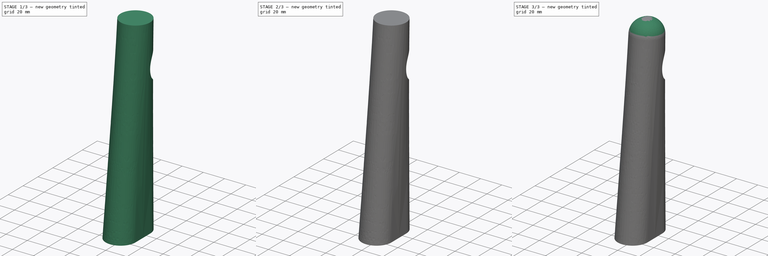
[diagram: build sequence overview — one tinted view per stage of 3, left to right]
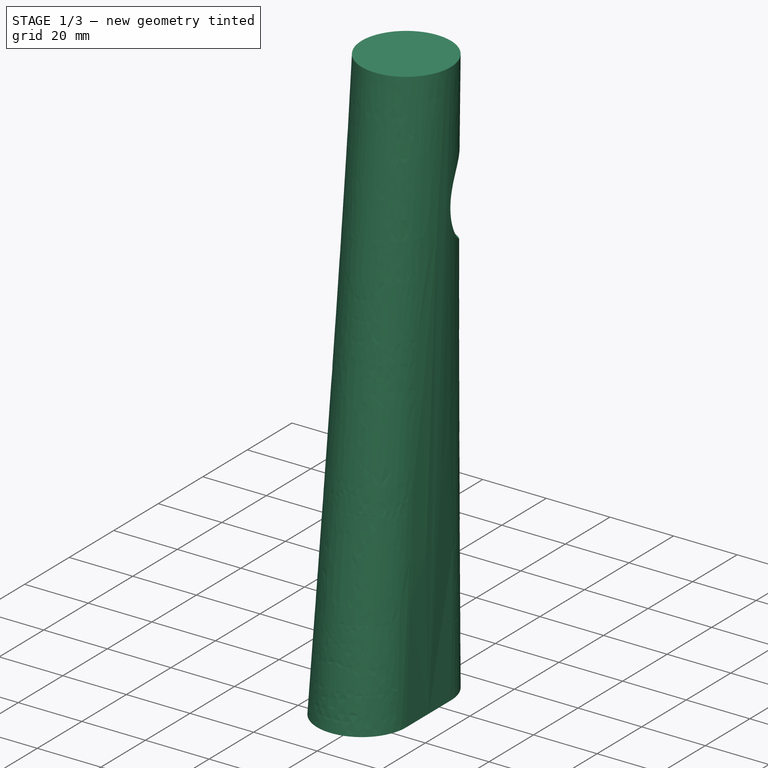
[diagram: stage 1 of 3 — iso view after this stage's code; geometry added in this stage tinted green]
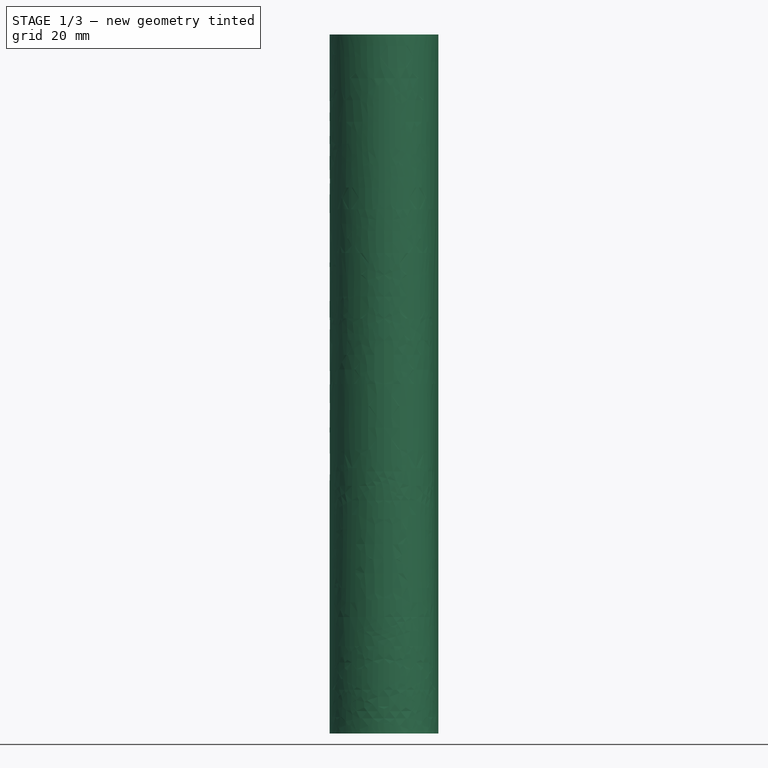
[diagram: stage 1 of 3 — front view after this stage's code; geometry added in this stage tinted green]
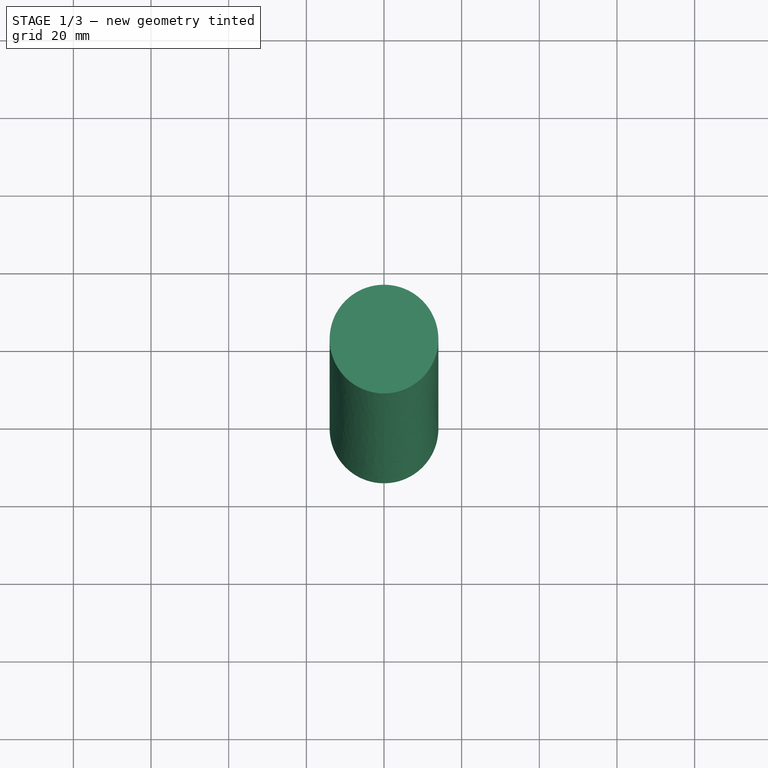
[diagram: stage 1 of 3 — top view after this stage's code; geometry added in this stage tinted green]
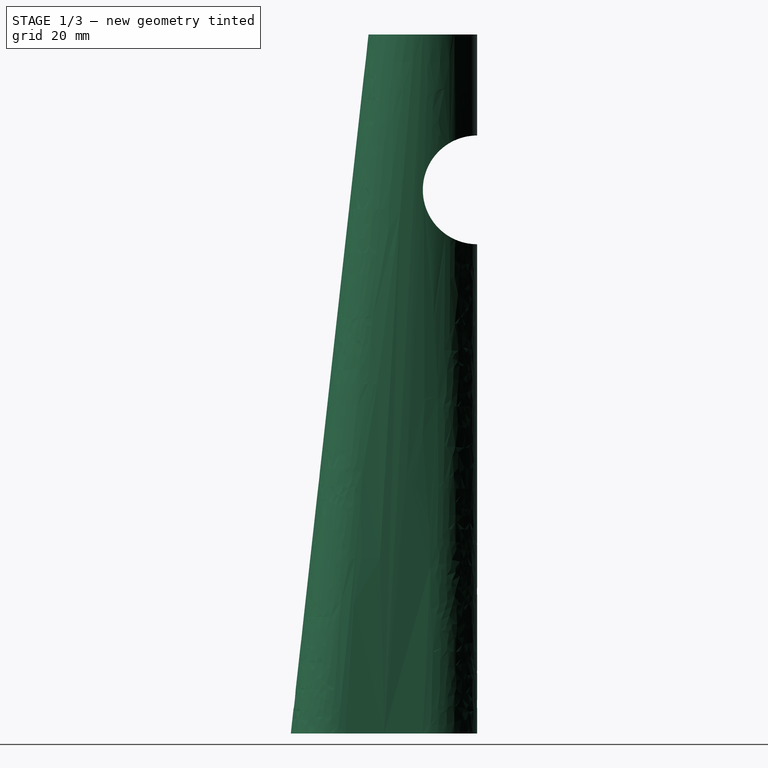
[diagram: stage 1 of 3 — right view after this stage's code; geometry added in this stage tinted green]
FCSTD DOCUMENT  (FreeCAD 1.0R39109 (Git))
Label: Parallel to Wall Mount
License: All rights reserved
LicenseURL: http://en.wikipedia.org/wiki/All_rights_reserved
objects: Sketcher::SketchObject×6, PartDesign::Plane×4, PartDesign::Pocket×4, Spreadsheet::Sheet×1, PartDesign::AdditiveLoft×1, PartDesign::Fillet×1, PartDesign::Body×1
note: 35 computed .brp shape members not serialized (recipe doc carries the construction recipe); baked Part::Feature solids carry a one-line shape summary decoded from their .brp

FEATURE [Sketcher::SketchObject] Sketch
  ArcFitTolerance = 1e-06
  AttachmentSupport = -> [XY_Plane]
  FullyConstrained = true
  MakeInternals = false
  MapMode = 5
  expr: Constraints[7] = Spreadsheet.diameter
  expr: Constraints[8] = Spreadsheet.base_oval_straight_length
  sketch-geometry (4):
    g0: ArcOfCircle CenterX=0 CenterY=0 CenterZ=0 NormalX=0 NormalY=0 NormalZ=1 AngleXU=0 Radius=14 StartAngle=2.386e-13 EndAngle=3.14159
    g1: ArcOfCircle CenterX=0 CenterY=-20 CenterZ=0 NormalX=0 NormalY=0 NormalZ=1 AngleXU=0 Radius=14 StartAngle=3.14159 EndAngle=6.28319
    g2: LineSegment StartX=14 StartY=3.3404e-12 StartZ=0 EndX=14 EndY=-20 EndZ=0
    g3: LineSegment StartX=-14 StartY=3.28e-14 StartZ=0 EndX=-14 EndY=-20 EndZ=0
  constraints (9):
    c: Tangent(g0,g2) = 1.5708
    c: Tangent(g0,g3) = -1.5708
    c: Tangent(g1,g2) = 1.5708
    c: Tangent(g1,g3) = -1.5708
    c: Equal(g0,g1)
    c: Coincident(g0,g-1)
    c: Vertical(g1,g0)
    c: Diameter(g0) = 28
    c: DistanceY(g2,g2) = 20
FEATURE [Spreadsheet::Sheet] Spreadsheet
  cells = A1='diameter; B1(diameter)=28; A2='base_oval_straight_length; B2(base_oval_straight_length)=20; A3='length; B3(length)=180; A4='bar_diameter; B4(bar_diameter)=28; A5='bar_center_distance_from_wall; B5(bar_center_distance_from_wall)=140; A6='bar_screw_hole_diameter; B6(bar_screw_hole_diameter)=3.5; A7='bar_screw_hole_depth; B7(bar_screw_hole_depth)=15; A8='wall_screw_support_thickness; B8(wall_screw_support_thickness)=3; A9='wall_screw_cavity_depth; B9(wall_screw_cavity_depth)=10; A10='wall_screw_cavity_diameter; B10(wall_screw_cavity_diameter)=11; A11='wall_screw_cavity_straight_length; B11(wall_screw_cavity_straight_length)=10; A12='wall_screw_slot_diameter; B12(wall_screw_slot_diameter)=4; A13='wall_screw_head_diameter; B13(wall_screw_head_diameter)=11; A14='wall_screw_slot_length; B14(wall_screw_slot_length)=10; A15='tip_fillet_radius; B15(tip_fillet_radius)=13
FEATURE [PartDesign::Plane] DatumPlane
  AttachmentOffset = pos=(0,0,180) rot=(0,0,1;0rad)
  AttachmentSupport = -> [Sketch]
  Length = 60.8534
  MapMode = 2
  Placement = pos=(0,0,180) rot=(0,0,1;0rad)
  ResizeMode = 0
  Width = 69.7513
  expr: .AttachmentOffset.Base.z = Spreadsheet.length
FEATURE [Sketcher::SketchObject] Sketch001
  ArcFitTolerance = 1e-06
  AttachmentSupport = -> [DatumPlane]
  FullyConstrained = true
  MakeInternals = false
  MapMode = 5
  Placement = pos=(0,0,180) rot=(0,0,1;0rad)
  expr: Constraints[1] = Spreadsheet.diameter
  sketch-geometry (1):
    g0: Circle CenterX=0 CenterY=0 CenterZ=0 NormalX=0 NormalY=0 NormalZ=1 AngleXU=0 Radius=14
  constraints (2):
    c: Coincident(g0,g-1)
    c: Diameter(g0) = 28
FEATURE [PartDesign::AdditiveLoft] AdditiveLoft
  Closed = false
  Profile = -> Sketch
  Ruled = false
  Sections = -> [Sketch001]
  Suppressed = false
FEATURE [PartDesign::Plane] DatumPlane001
  AttachmentSupport = -> [YZ_Plane]
  Length = 80.8743
  MapMode = 5
  Placement = pos=(0,0,0) rot=(0.57735,0.57735,0.57735;2.0944rad)
  ResizeMode = 0
  Width = 226.976
FEATURE [Sketcher::SketchObject] Sketch002
  ArcFitTolerance = 1e-06
  AttachmentSupport = -> [DatumPlane001]
  FullyConstrained = true
  MakeInternals = false
  MapMode = 5
  Placement = pos=(0,0,0) rot=(0.57735,0.57735,0.57735;2.0944rad)
  expr: Constraints[0] = Spreadsheet.bar_diameter / 2
  expr: Constraints[1] = Spreadsheet.diameter
  expr: Constraints[2] = Spreadsheet.bar_center_distance_from_wall
  sketch-geometry (1):
    g0: Circle CenterX=14 CenterY=140 CenterZ=0 NormalX=0 NormalY=0 NormalZ=1 AngleXU=0 Radius=14
  constraints (3):
    c: DistanceX(g-1,g0) = 14
    c: Diameter(g0) = 28
    c: DistanceY(g-1,g0) = 140
FEATURE [PartDesign::Pocket] Pocket
  BaseFeature = -> AdditiveLoft
  Direction = (-1,0,0)
  Length = 5
  Length2 = 5
  Midplane = true
  Profile = -> Sketch002
  ReferenceAxis = -> Sketch002 [N_Axis]
  Suppressed = false
  Type = 1
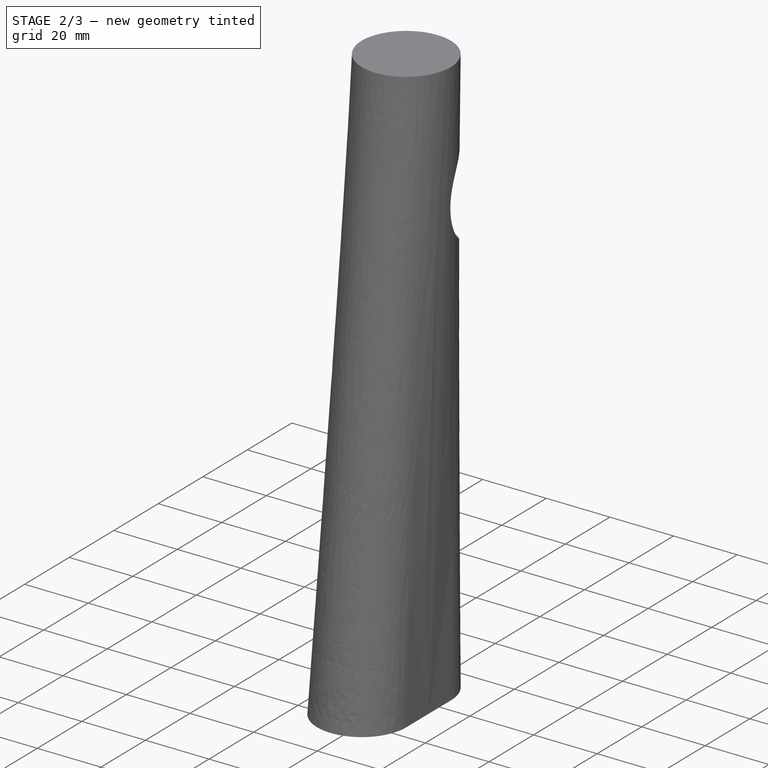
[diagram: stage 2 of 3 — iso view after this stage's code; geometry added in this stage tinted green]
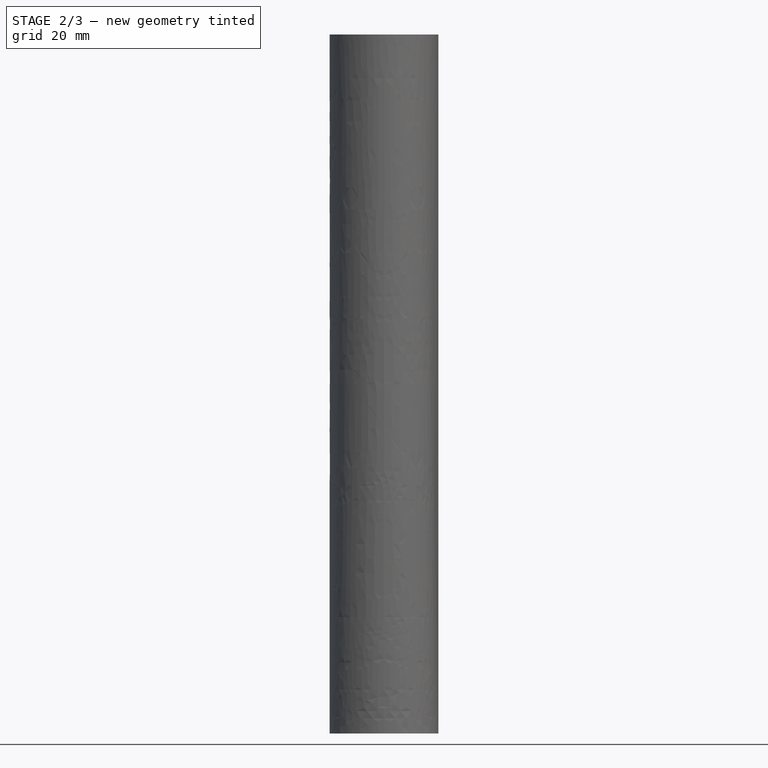
[diagram: stage 2 of 3 — front view after this stage's code; geometry added in this stage tinted green]
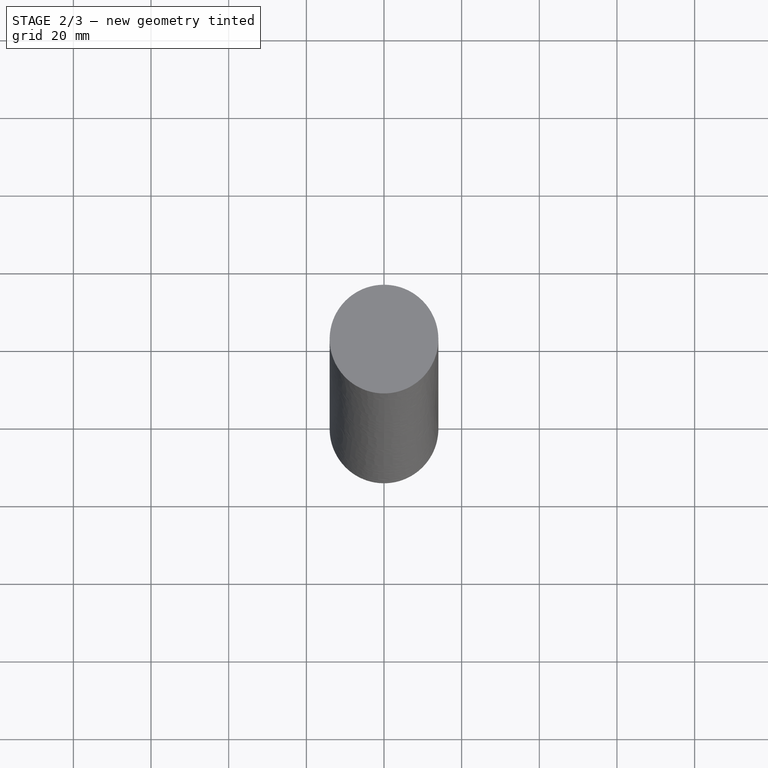
[diagram: stage 2 of 3 — top view after this stage's code; geometry added in this stage tinted green]
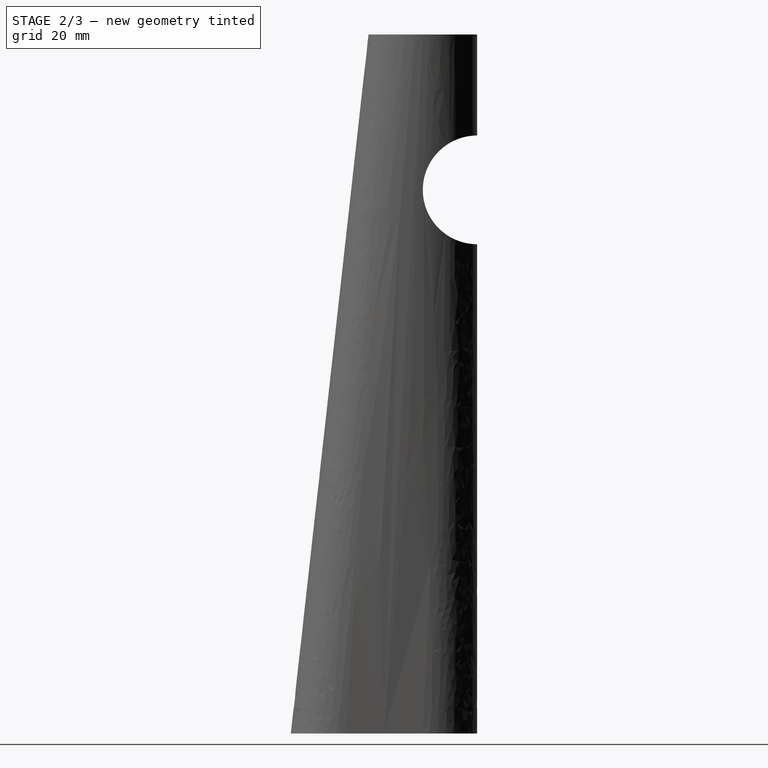
[diagram: stage 2 of 3 — right view after this stage's code; geometry added in this stage tinted green]
FEATURE [PartDesign::Plane] DatumPlane002
  AttachmentSupport = -> [XZ_Plane]
  Length = 70.2485
  MapMode = 5
  Placement = pos=(0,0,0) rot=(0,0.707107,0.707107;3.14159rad)
  ResizeMode = 0
  Width = 225.248
FEATURE [Sketcher::SketchObject] Sketch003
  ArcFitTolerance = 1e-06
  AttachmentSupport = -> [DatumPlane002]
  FullyConstrained = true
  MakeInternals = false
  MapMode = 5
  Placement = pos=(0,0,0) rot=(0,0.707107,0.707107;3.14159rad)
  expr: Constraints[1] = Spreadsheet.bar_center_distance_from_wall
  expr: Constraints[2] = Spreadsheet.bar_screw_hole_diameter
  sketch-geometry (1):
    g0: Circle CenterX=0 CenterY=140 CenterZ=0 NormalX=0 NormalY=0 NormalZ=1 AngleXU=0 Radius=1.75
  constraints (3):
    c: Vertical(g0,g-1)
    c: DistanceY(g-1,g0) = 140
    c: Diameter(g0) = 3.5
FEATURE [PartDesign::Pocket] Pocket001
  BaseFeature = -> Pocket
  Direction = (0,-1,2e-16)
  Length = 15
  Length2 = 5
  Midplane = true
  Profile = -> Sketch003
  ReferenceAxis = -> Sketch003 [N_Axis]
  Suppressed = false
  Type = 4
  expr: Length = Spreadsheet.bar_screw_hole_depth
FEATURE [PartDesign::Plane] DatumPlane003
  AttachmentOffset = pos=(0,0,-3) rot=(0,0,1;0rad)
  AttachmentSupport = -> [Pocket001]
  Length = 60.8534
  MapMode = 5
  Placement = pos=(0,0,3) rot=(1,0,0;3.14159rad)
  ResizeMode = 0
  Width = 69.7513
  expr: .AttachmentOffset.Base.z = -Spreadsheet.wall_screw_support_thickness
FEATURE [Sketcher::SketchObject] Sketch004
  ArcFitTolerance = 1e-06
  AttachmentSupport = -> [DatumPlane003]
  FullyConstrained = true
  MakeInternals = false
  MapMode = 5
  Placement = pos=(0,0,3) rot=(1,0,0;3.14159rad)
  expr: Constraints[6] = Spreadsheet.wall_screw_cavity_diameter
  expr: Constraints[8] = Spreadsheet.wall_screw_cavity_straight_length
  sketch-geometry (4):
    g0: ArcOfCircle CenterX=0 CenterY=0 CenterZ=0 NormalX=0 NormalY=0 NormalZ=1 AngleXU=0 Radius=5.5 StartAngle=3.14159 EndAngle=6.28319
    g1: ArcOfCircle CenterX=0 CenterY=10 CenterZ=0 NormalX=0 NormalY=0 NormalZ=1 AngleXU=0 Radius=5.5 StartAngle=0 EndAngle=3.14159
    g2: LineSegment StartX=-5.5 StartY=7e-16 StartZ=0 EndX=-5.5 EndY=10 EndZ=0
    g3: LineSegment StartX=5.5 StartY=-1e-16 StartZ=0 EndX=5.5 EndY=10 EndZ=0
  constraints (9):
    c: Tangent(g0,g2) = 1.5708
    c: Tangent(g0,g3) = -1.5708
    c: Tangent(g1,g2) = 1.5708
    c: Tangent(g1,g3) = -1.5708
    c: Equal(g0,g1)
    c: Coincident(g0,g-1)
    c: Diameter(g0) = 11
    c: Vertical(g0,g1)
    c: DistanceY(g2,g2) = 10
FEATURE [PartDesign::Pocket] Pocket002
  BaseFeature = -> Pocket001
  Direction = (0,0,1)
  Length = 10
  Length2 = 5
  Profile = -> Sketch004
  ReferenceAxis = -> Sketch004 [N_Axis]
  Suppressed = false
  Type = 0
  expr: Length = Spreadsheet.wall_screw_cavity_depth
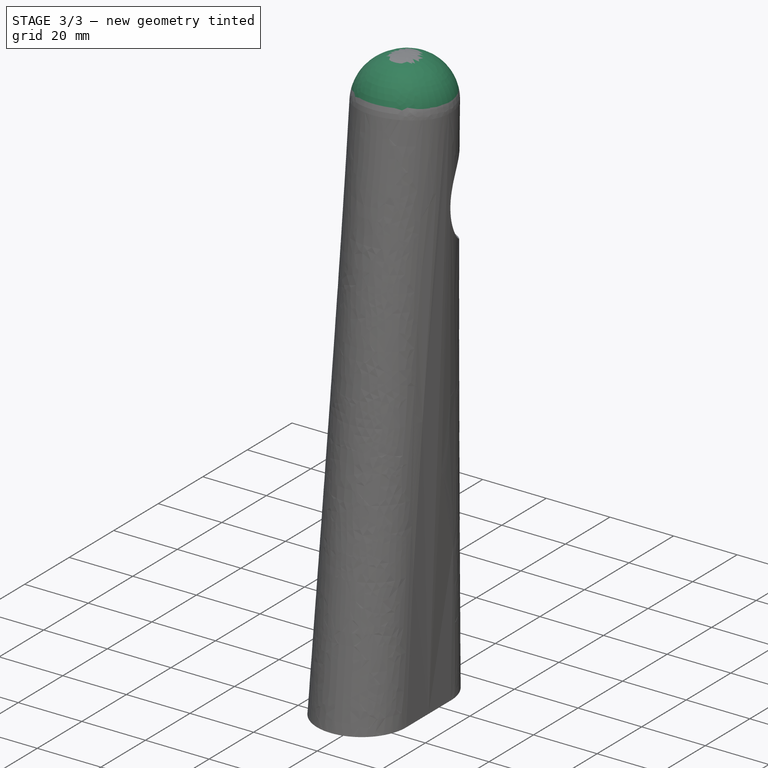
[diagram: stage 3 of 3 — iso view after this stage's code; geometry added in this stage tinted green]
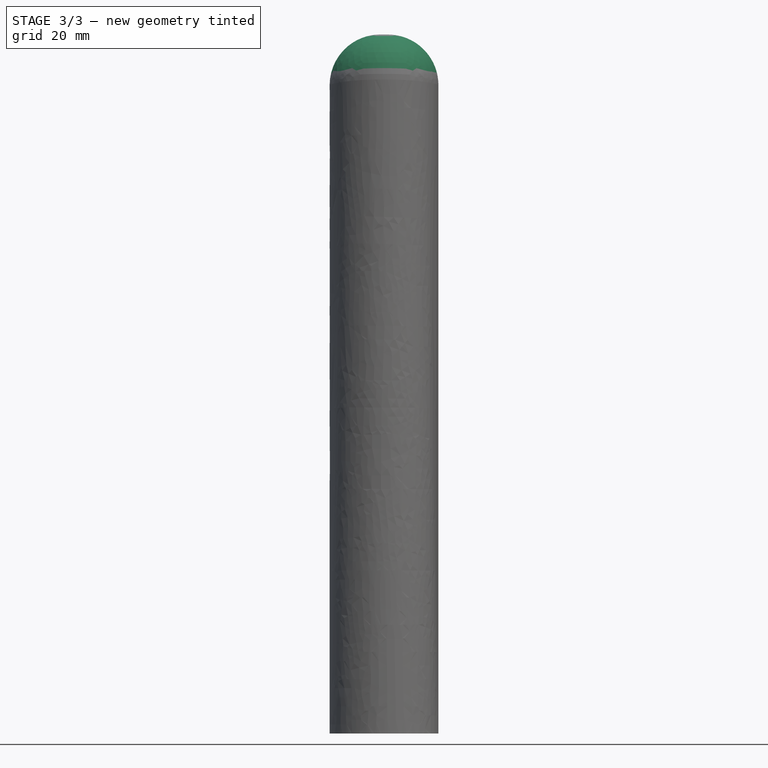
[diagram: stage 3 of 3 — front view after this stage's code; geometry added in this stage tinted green]
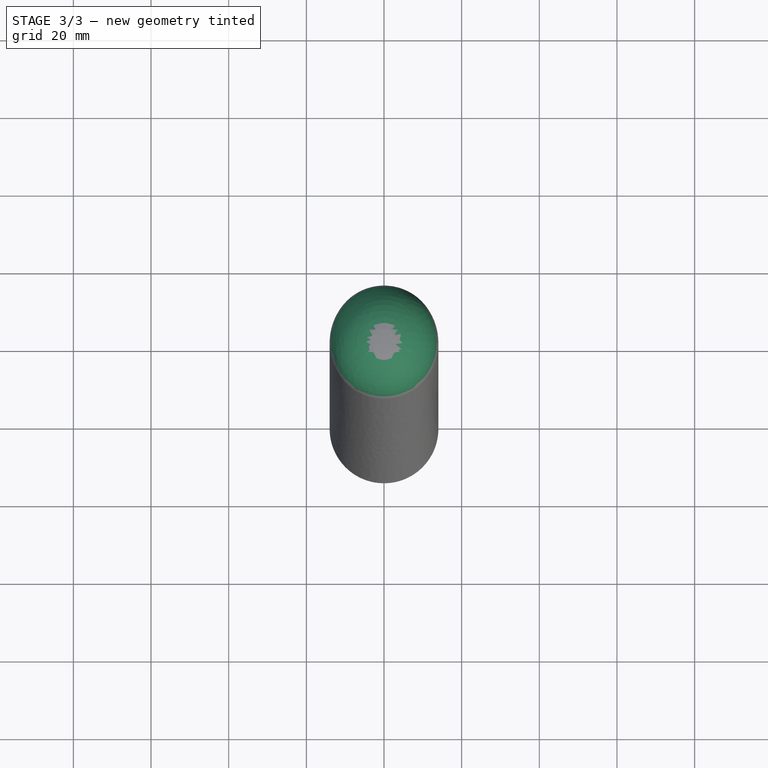
[diagram: stage 3 of 3 — top view after this stage's code; geometry added in this stage tinted green]
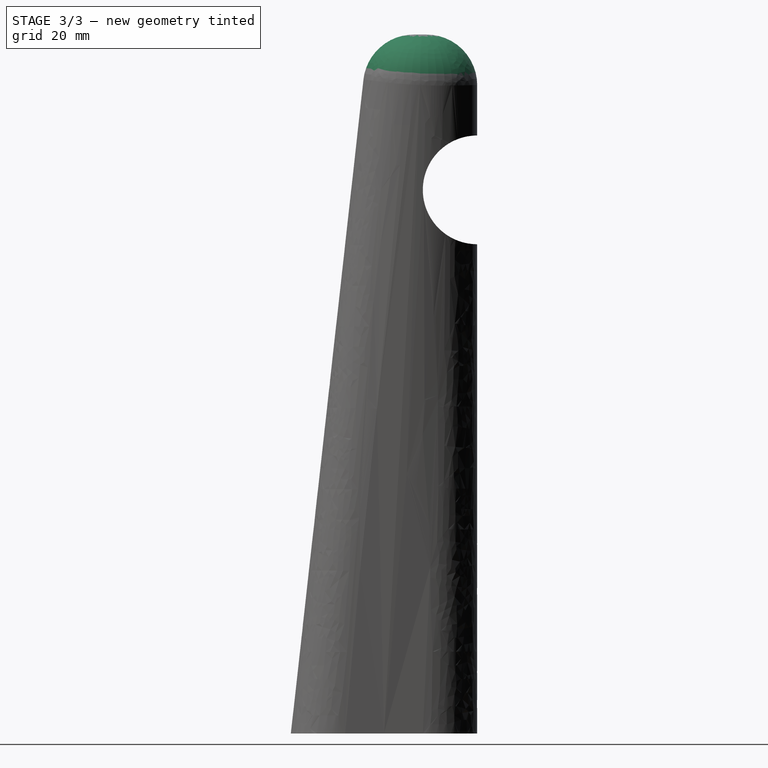
[diagram: stage 3 of 3 — right view after this stage's code; geometry added in this stage tinted green]
FEATURE [Sketcher::SketchObject] Sketch005
  ArcFitTolerance = 1e-06
  AttachmentSupport = -> [Pocket002]
  FullyConstrained = true
  MakeInternals = false
  MapMode = 5
  Placement = pos=(0,0,0) rot=(1,0,0;3.14159rad)
  expr: Constraints[10] = Spreadsheet.wall_screw_head_diameter
  expr: Constraints[7] = Spreadsheet.wall_screw_slot_diameter
  expr: Constraints[8] = Spreadsheet.wall_screw_slot_length
  sketch-geometry (5):
    g0: ArcOfCircle CenterX=0 CenterY=0 CenterZ=0 NormalX=0 NormalY=0 NormalZ=1 AngleXU=0 Radius=2 StartAngle=3.14159 EndAngle=6.28319
    g1: ArcOfCircle CenterX=-1e-16 CenterY=10 CenterZ=0 NormalX=0 NormalY=0 NormalZ=1 AngleXU=0 Radius=2 StartAngle=4e-16 EndAngle=3.14159
    g2: LineSegment StartX=-2 StartY=-6e-16 StartZ=0 EndX=-2 EndY=10 EndZ=0
    g3: LineSegment StartX=2 StartY=-5e-16 StartZ=0 EndX=2 EndY=10 EndZ=0
    g4: Circle CenterX=-1e-16 CenterY=10 CenterZ=0 NormalX=0 NormalY=0 NormalZ=1 AngleXU=0 Radius=5.5
  constraints (11):
    c: Tangent(g0,g2) = 1.5708
    c: Tangent(g0,g3) = -1.5708
    c: Tangent(g1,g2) = 1.5708
    c: Tangent(g1,g3) = -1.5708
    c: Equal(g0,g1)
    c: Coincident(g0,g-1)
    c: Vertical(g2)
    c: Diameter(g0) = 4
    c: DistanceY(g3,g3) = 10
    c: Coincident(g4,g1)
    c: Diameter(g4) = 11
FEATURE [PartDesign::Pocket] Pocket003
  BaseFeature = -> Pocket002
  Direction = (0,0,1)
  Length = 5
  Length2 = 5
  Profile = -> Sketch005
  ReferenceAxis = -> Sketch005 [N_Axis]
  Suppressed = false
  Type = 2
FEATURE [PartDesign::Fillet] Fillet
  Base = -> Pocket003 [Edge38,Edge20,Edge24,Edge22,Edge15]
  BaseFeature = -> Pocket003
  Radius = 13
  SupportTransform = false
  Suppressed = false
  UseAllEdges = false
  expr: Radius = Spreadsheet.tip_fillet_radius
FEATURE [PartDesign::Body] Body
  AllowCompound = false
  Group = -> [Sketch,DatumPlane,Sketch001,AdditiveLoft,DatumPlane001,Sketch002,Pocket,DatumPlane002,Sketch003,Pocket001,DatumPlane003,Sketch004,Pocket002,Sketch005,Pocket003,Fillet]
  Origin = -> Origin
  Tip = -> Fillet
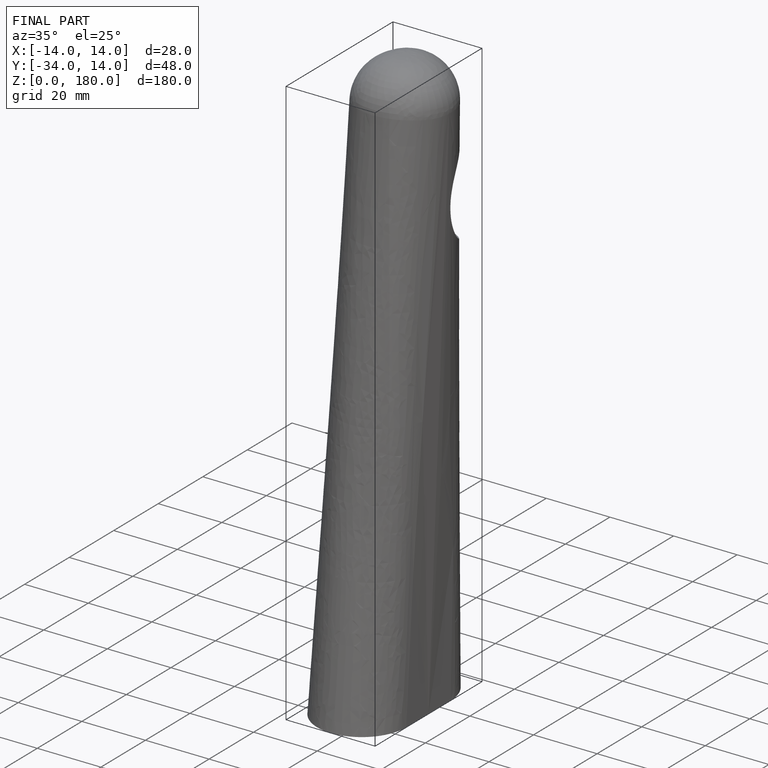
[diagram: finished part — iso view with bounding-box wireframe]
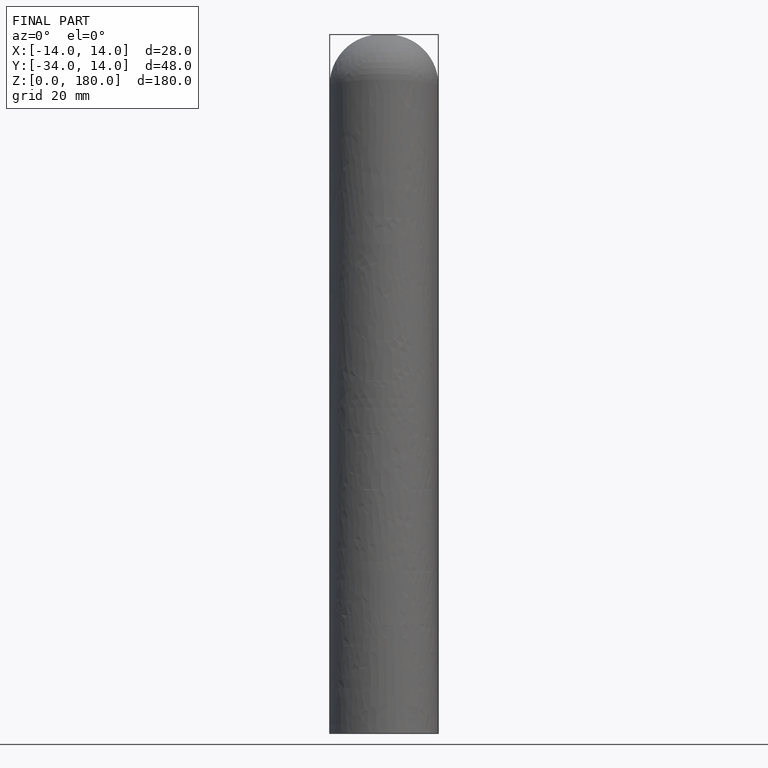
[diagram: finished part — front view with bounding-box wireframe]
